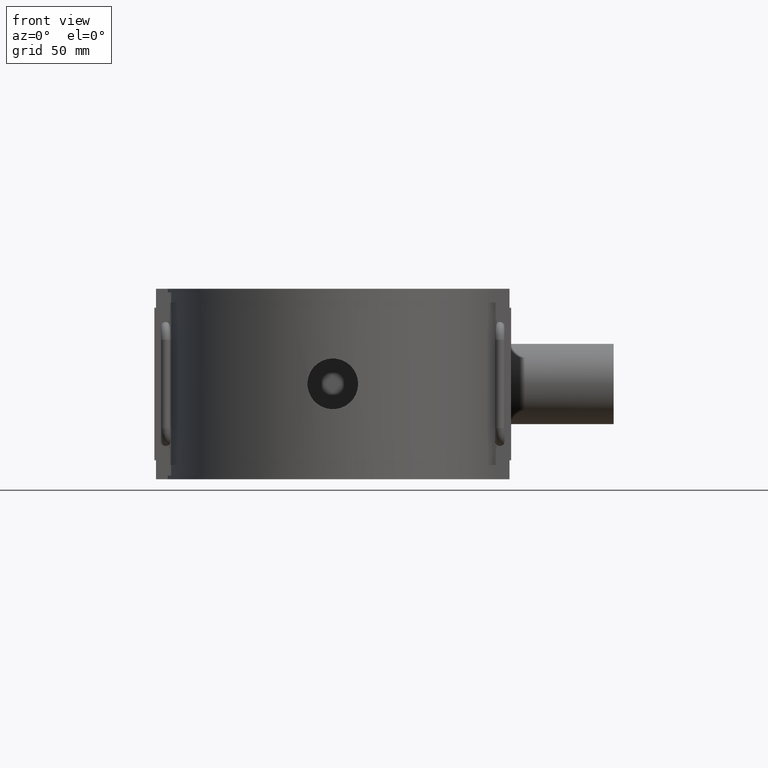
[diagram: clean part render]
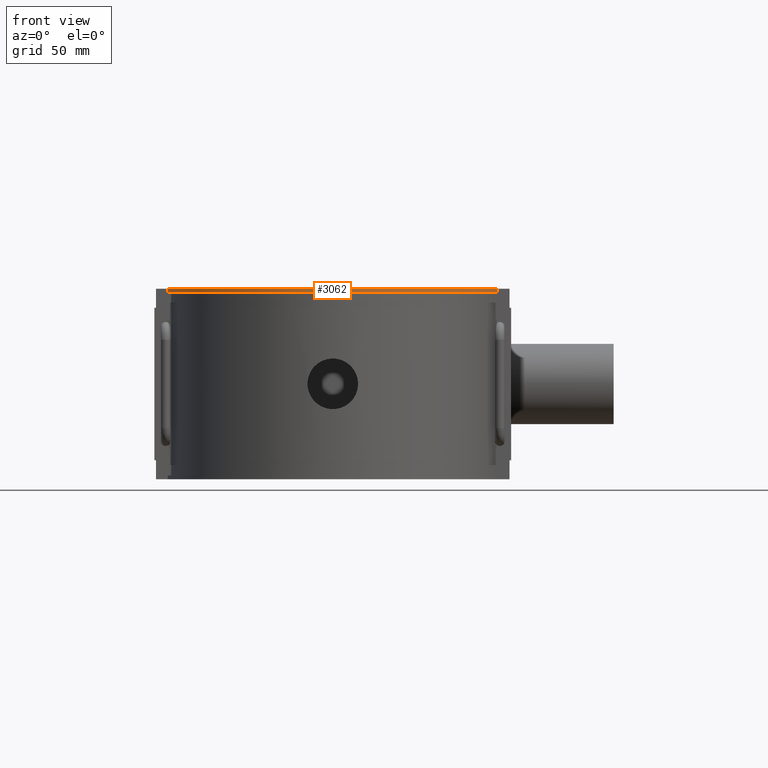
[diagram: same view with one face highlighted and labeled with its STEP entity id]
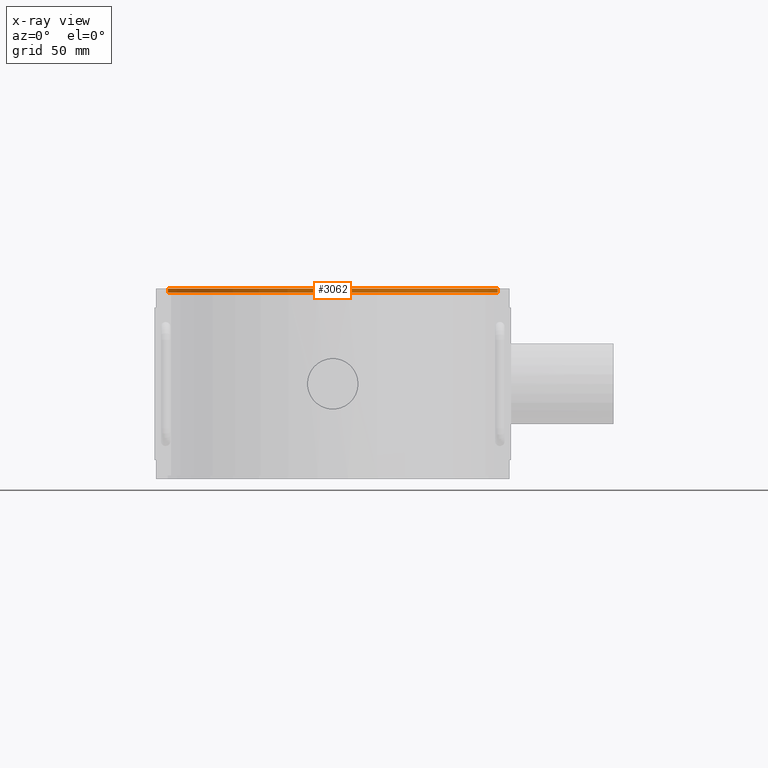
[diagram: x-ray of the same camera — body ghosted, the highlighted face saturated]
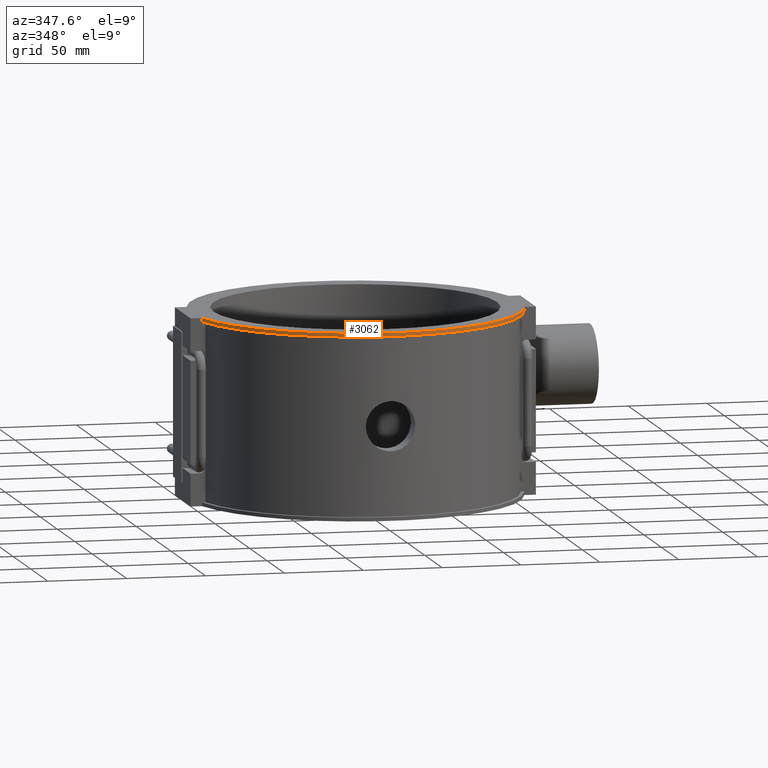
[diagram: same view with one face highlighted and labeled with its STEP entity id]
A machine part, front view. The second image highlights one B-rep face of the part: STEP entity #3062.
The next image is the same camera in x-ray: the body ghosted, the highlighted face saturated — about 0% of this face is hidden behind the body in this view.
A second angle (auxiliary view) of the same face is appended — the face is thin or edge-on in the first view.
In plain terms, the highlighted cylindrical surface (partial cylindrical patch) has radius 104.652 mm, axis along (0, 0, -1).
Its self-contained STEP definition (entity closure, byte-faithful):
#119=LINE('',#5358,#398);
#131=LINE('',#5419,#410);
#398=VECTOR('',#3740,2.36);
#410=VECTOR('',#3770,2.36);
#755=CIRCLE('',#3291,104.652);
#756=CIRCLE('',#3292,104.652);
#920=FACE_OUTER_BOUND('',#1115,.T.);
#1115=EDGE_LOOP('',(#2337,#2338,#2339,#2340));
#1433=VERTEX_POINT('',#5355);
#1434=VERTEX_POINT('',#5357);
#1449=VERTEX_POINT('',#5415);
#1450=VERTEX_POINT('',#5417);
#1769=EDGE_CURVE('',#1433,#1434,#119,.T.);
#1787=EDGE_CURVE('',#1434,#1449,#755,.T.);
#1788=EDGE_CURVE('',#1450,#1433,#756,.T.);
#1789=EDGE_CURVE('',#1449,#1450,#131,.T.);
#2337=ORIENTED_EDGE('',*,*,#1787,.F.);
#2338=ORIENTED_EDGE('',*,*,#1769,.F.);
#2339=ORIENTED_EDGE('',*,*,#1788,.F.);
#2340=ORIENTED_EDGE('',*,*,#1789,.F.);
#2978=CYLINDRICAL_SURFACE('',#3290,104.652);
#3062=ADVANCED_FACE('',(#920),#2978,.T.);
#3290=AXIS2_PLACEMENT_3D('',#5414,#3764,#3765);
#3291=AXIS2_PLACEMENT_3D('',#5416,#3766,#3767);
#3292=AXIS2_PLACEMENT_3D('',#5418,#3768,#3769);
#3740=DIRECTION('',(0.,0.,1.));
#3764=DIRECTION('center_axis',(0.,0.,-1.));
#3765=DIRECTION('ref_axis',(-0.976614427290077,-0.21499828001376,0.));
#3766=DIRECTION('center_axis',(0.,0.,1.));
#3767=DIRECTION('ref_axis',(-0.976614427290077,-0.21499828001376,0.));
#3768=DIRECTION('center_axis',(0.,0.,-1.));
#3769=DIRECTION('ref_axis',(-0.976614427290077,-0.21499828001376,0.));
#3770=DIRECTION('',(0.,0.,-1.));
#5355=CARTESIAN_POINT('',(-102.204653044761,-22.5,56.64));
#5357=CARTESIAN_POINT('',(-102.204653044761,-22.5,59.));
#5358=CARTESIAN_POINT('',(-102.204653044761,-22.5,59.));
#5414=CARTESIAN_POINT('Origin',(0.,0.,59.));
#5415=CARTESIAN_POINT('',(102.204653044761,-22.5,59.));
#5416=CARTESIAN_POINT('Origin',(0.,0.,59.));
#5417=CARTESIAN_POINT('',(102.204653044761,-22.5,56.64));
#5418=CARTESIAN_POINT('Origin',(0.,0.,56.64));
#5419=CARTESIAN_POINT('',(102.204653044761,-22.5,59.));